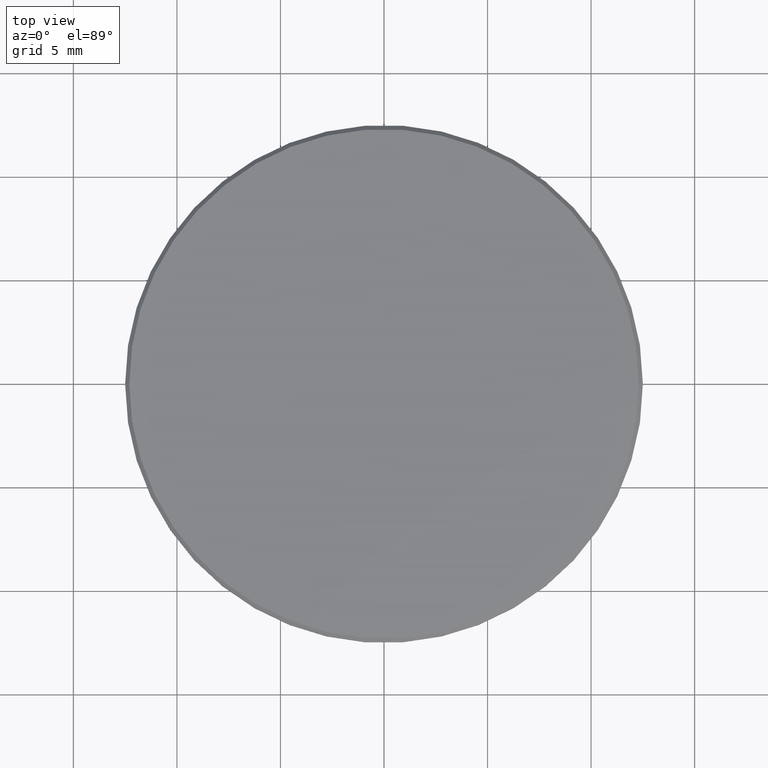
[diagram: clean part render]
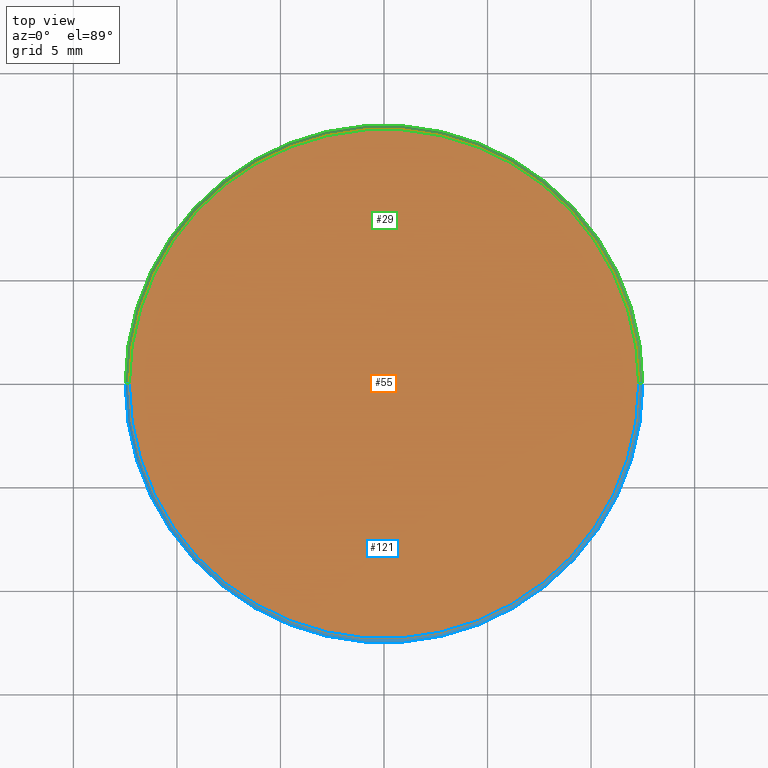
[diagram: same view with three faces highlighted in distinct colors, each labeled with its STEP entity id]
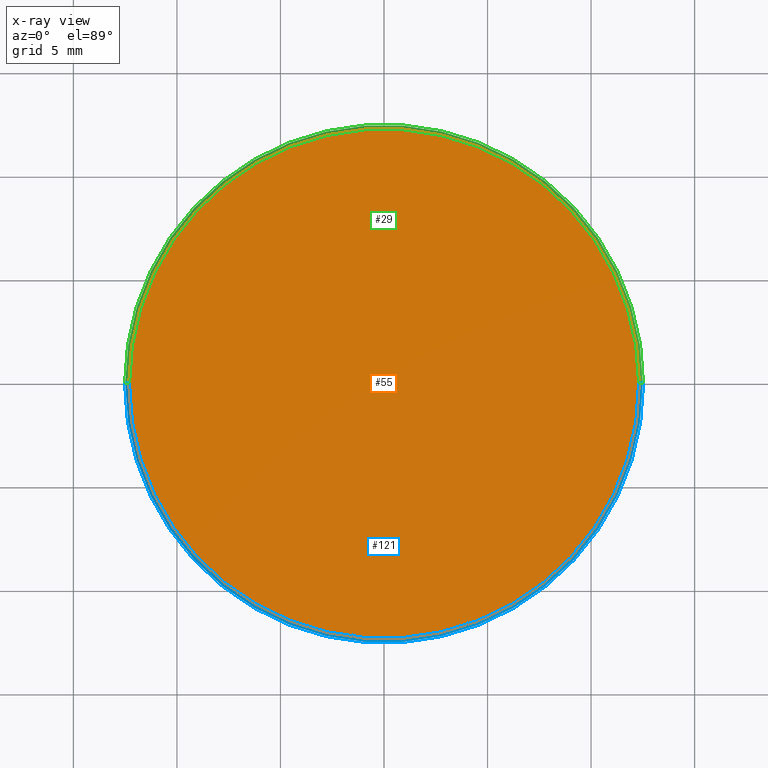
[diagram: x-ray of the same camera — body ghosted, the three highlighted faces saturated]
A machine part, top view with three faces highlighted in distinct colors.
The next image is the same camera in x-ray (body ghosted, the three faces saturated) — at least one of them is partly hidden behind the body in this view.
Their STEP definitions:

[orange] entity #55 — the highlighted planar face has unit normal (0, 0, 1).
#15 = FACE_OUTER_BOUND ( 'NONE', #98, .T. ) ;
#17 = DIRECTION ( 'NONE',  ( 0.000000000000000000, 0.000000000000000000, 1.000000000000000000 ) ) ;
#30 = CARTESIAN_POINT ( 'NONE',  ( -12.29999999999999893, 0.000000000000000000, 1.000000000000000000 ) ) ;
#31 = EDGE_CURVE ( 'NONE', #173, #154, #169, .T. ) ;
#42 = DIRECTION ( 'NONE',  ( 0.000000000000000000, 0.000000000000000000, 1.000000000000000000 ) ) ;
#55 = ADVANCED_FACE ( 'NONE', ( #15 ), #177, .T. ) ;
#57 = AXIS2_PLACEMENT_3D ( 'NONE', #211, #42, #83 ) ;
#67 = DIRECTION ( 'NONE',  ( 1.000000000000000000, 0.000000000000000000, 0.000000000000000000 ) ) ;
#70 = CARTESIAN_POINT ( 'NONE',  ( 0.000000000000000000, 0.000000000000000000, 1.000000000000000000 ) ) ;
#71 = CIRCLE ( 'NONE', #196, 12.29999999999999893 ) ;
#83 = DIRECTION ( 'NONE',  ( 1.000000000000000000, 0.000000000000000000, 0.000000000000000000 ) ) ;
#88 = DIRECTION ( 'NONE',  ( 0.000000000000000000, 0.000000000000000000, 1.000000000000000000 ) ) ;
#95 = ORIENTED_EDGE ( 'NONE', *, *, #31, .T. ) ;
#98 = EDGE_LOOP ( 'NONE', ( #95, #185 ) ) ;
#119 = EDGE_CURVE ( 'NONE', #154, #173, #71, .T. ) ;
#125 = CARTESIAN_POINT ( 'NONE',  ( 12.29999999999999893, 1.518562030942717967E-15, 1.000000000000000000 ) ) ;
#154 = VERTEX_POINT ( 'NONE', #125 ) ;
#169 = CIRCLE ( 'NONE', #57, 12.29999999999999893 ) ;
#173 = VERTEX_POINT ( 'NONE', #30 ) ;
#177 = PLANE ( 'NONE',  #180 ) ;
#178 = DIRECTION ( 'NONE',  ( 1.000000000000000000, 0.000000000000000000, -0.000000000000000000 ) ) ;
#180 = AXIS2_PLACEMENT_3D ( 'NONE', #181, #17, #178 ) ;
#181 = CARTESIAN_POINT ( 'NONE',  ( 0.000000000000000000, 0.000000000000000000, 1.000000000000000000 ) ) ;
#185 = ORIENTED_EDGE ( 'NONE', *, *, #119, .T. ) ;
#196 = AXIS2_PLACEMENT_3D ( 'NONE', #70, #88, #67 ) ;
#211 = CARTESIAN_POINT ( 'NONE',  ( 0.000000000000000000, 0.000000000000000000, 1.000000000000000000 ) ) ;

[blue] entity #121 — the highlighted conical surface has half-angle 45 deg.
#7 = EDGE_CURVE ( 'NONE', #11, #100, #212, .T. ) ;
#9 = CARTESIAN_POINT ( 'NONE',  ( 0.000000000000000000, 0.000000000000000000, 0.8000000000000029310 ) ) ;
#11 = VERTEX_POINT ( 'NONE', #81 ) ;
#13 = LINE ( 'NONE', #87, #139 ) ;
#30 = CARTESIAN_POINT ( 'NONE',  ( -12.29999999999999893, 0.000000000000000000, 1.000000000000000000 ) ) ;
#31 = EDGE_CURVE ( 'NONE', #173, #154, #169, .T. ) ;
#34 = CARTESIAN_POINT ( 'NONE',  ( 12.29999999999999893, 1.506315562951244216E-15, 1.000000000000000000 ) ) ;
#40 = EDGE_LOOP ( 'NONE', ( #76, #99, #209, #188 ) ) ;
#42 = DIRECTION ( 'NONE',  ( 0.000000000000000000, 0.000000000000000000, 1.000000000000000000 ) ) ;
#48 = CARTESIAN_POINT ( 'NONE',  ( 0.000000000000000000, 0.000000000000000000, 1.000000000000000000 ) ) ;
#51 = DIRECTION ( 'NONE',  ( 0.7071067811865566766, 8.659560562355045024E-17, -0.7071067811865383579 ) ) ;
#52 = CONICAL_SURFACE ( 'NONE', #63, 12.29999999999999893, 0.7853981633974612686 ) ;
#57 = AXIS2_PLACEMENT_3D ( 'NONE', #211, #42, #83 ) ;
#63 = AXIS2_PLACEMENT_3D ( 'NONE', #48, #143, #215 ) ;
#66 = LINE ( 'NONE', #34, #193 ) ;
#76 = ORIENTED_EDGE ( 'NONE', *, *, #79, .F. ) ;
#78 = DIRECTION ( 'NONE',  ( 1.000000000000000000, 0.000000000000000000, 0.000000000000000000 ) ) ;
#79 = EDGE_CURVE ( 'NONE', #154, #11, #66, .T. ) ;
#81 = CARTESIAN_POINT ( 'NONE',  ( 12.50000000000000000, 1.530808498934191521E-15, 0.8000000000000029310 ) ) ;
#83 = DIRECTION ( 'NONE',  ( 1.000000000000000000, 0.000000000000000000, 0.000000000000000000 ) ) ;
#87 = CARTESIAN_POINT ( 'NONE',  ( -12.29999999999999893, 0.000000000000000000, 1.000000000000000000 ) ) ;
#92 = EDGE_CURVE ( 'NONE', #173, #100, #13, .T. ) ;
#99 = ORIENTED_EDGE ( 'NONE', *, *, #31, .F. ) ;
#100 = VERTEX_POINT ( 'NONE', #234 ) ;
#108 = AXIS2_PLACEMENT_3D ( 'NONE', #9, #156, #78 ) ;
#121 = ADVANCED_FACE ( 'NONE', ( #217 ), #52, .T. ) ;
#125 = CARTESIAN_POINT ( 'NONE',  ( 12.29999999999999893, 1.518562030942717967E-15, 1.000000000000000000 ) ) ;
#139 = VECTOR ( 'NONE', #158, 1000.000000000000000 ) ;
#143 = DIRECTION ( 'NONE',  ( 0.000000000000000000, 0.000000000000000000, -1.000000000000000000 ) ) ;
#154 = VERTEX_POINT ( 'NONE', #125 ) ;
#156 = DIRECTION ( 'NONE',  ( 0.000000000000000000, 0.000000000000000000, -1.000000000000000000 ) ) ;
#158 = DIRECTION ( 'NONE',  ( -0.7071067811865566766, 0.000000000000000000, -0.7071067811865383579 ) ) ;
#169 = CIRCLE ( 'NONE', #57, 12.29999999999999893 ) ;
#173 = VERTEX_POINT ( 'NONE', #30 ) ;
#188 = ORIENTED_EDGE ( 'NONE', *, *, #7, .F. ) ;
#193 = VECTOR ( 'NONE', #51, 1000.000000000000000 ) ;
#209 = ORIENTED_EDGE ( 'NONE', *, *, #92, .T. ) ;
#211 = CARTESIAN_POINT ( 'NONE',  ( 0.000000000000000000, 0.000000000000000000, 1.000000000000000000 ) ) ;
#212 = CIRCLE ( 'NONE', #108, 12.50000000000000000 ) ;
#215 = DIRECTION ( 'NONE',  ( -1.000000000000000000, 0.000000000000000000, 0.000000000000000000 ) ) ;
#217 = FACE_OUTER_BOUND ( 'NONE', #40, .T. ) ;
#234 = CARTESIAN_POINT ( 'NONE',  ( -12.50000000000000000, 0.000000000000000000, 0.8000000000000029310 ) ) ;

[green] entity #29 — the highlighted conical surface has half-angle 45 deg.
#11 = VERTEX_POINT ( 'NONE', #81 ) ;
#13 = LINE ( 'NONE', #87, #139 ) ;
#19 = DIRECTION ( 'NONE',  ( 0.000000000000000000, 0.000000000000000000, -1.000000000000000000 ) ) ;
#22 = CIRCLE ( 'NONE', #104, 12.50000000000000000 ) ;
#29 = ADVANCED_FACE ( 'NONE', ( #77 ), #32, .T. ) ;
#30 = CARTESIAN_POINT ( 'NONE',  ( -12.29999999999999893, 0.000000000000000000, 1.000000000000000000 ) ) ;
#32 = CONICAL_SURFACE ( 'NONE', #86, 12.29999999999999893, 0.7853981633974612686 ) ;
#34 = CARTESIAN_POINT ( 'NONE',  ( 12.29999999999999893, 1.506315562951244216E-15, 1.000000000000000000 ) ) ;
#51 = DIRECTION ( 'NONE',  ( 0.7071067811865566766, 8.659560562355045024E-17, -0.7071067811865383579 ) ) ;
#66 = LINE ( 'NONE', #34, #193 ) ;
#67 = DIRECTION ( 'NONE',  ( 1.000000000000000000, 0.000000000000000000, 0.000000000000000000 ) ) ;
#70 = CARTESIAN_POINT ( 'NONE',  ( 0.000000000000000000, 0.000000000000000000, 1.000000000000000000 ) ) ;
#71 = CIRCLE ( 'NONE', #196, 12.29999999999999893 ) ;
#77 = FACE_OUTER_BOUND ( 'NONE', #117, .T. ) ;
#79 = EDGE_CURVE ( 'NONE', #154, #11, #66, .T. ) ;
#81 = CARTESIAN_POINT ( 'NONE',  ( 12.50000000000000000, 1.530808498934191521E-15, 0.8000000000000029310 ) ) ;
#86 = AXIS2_PLACEMENT_3D ( 'NONE', #152, #228, #138 ) ;
#87 = CARTESIAN_POINT ( 'NONE',  ( -12.29999999999999893, 0.000000000000000000, 1.000000000000000000 ) ) ;
#88 = DIRECTION ( 'NONE',  ( 0.000000000000000000, 0.000000000000000000, 1.000000000000000000 ) ) ;
#92 = EDGE_CURVE ( 'NONE', #173, #100, #13, .T. ) ;
#100 = VERTEX_POINT ( 'NONE', #234 ) ;
#104 = AXIS2_PLACEMENT_3D ( 'NONE', #237, #19, #203 ) ;
#117 = EDGE_LOOP ( 'NONE', ( #230, #150, #195, #206 ) ) ;
#119 = EDGE_CURVE ( 'NONE', #154, #173, #71, .T. ) ;
#125 = CARTESIAN_POINT ( 'NONE',  ( 12.29999999999999893, 1.518562030942717967E-15, 1.000000000000000000 ) ) ;
#138 = DIRECTION ( 'NONE',  ( -1.000000000000000000, 0.000000000000000000, 0.000000000000000000 ) ) ;
#139 = VECTOR ( 'NONE', #158, 1000.000000000000000 ) ;
#150 = ORIENTED_EDGE ( 'NONE', *, *, #79, .T. ) ;
#152 = CARTESIAN_POINT ( 'NONE',  ( 0.000000000000000000, 0.000000000000000000, 1.000000000000000000 ) ) ;
#154 = VERTEX_POINT ( 'NONE', #125 ) ;
#158 = DIRECTION ( 'NONE',  ( -0.7071067811865566766, 0.000000000000000000, -0.7071067811865383579 ) ) ;
#173 = VERTEX_POINT ( 'NONE', #30 ) ;
#175 = EDGE_CURVE ( 'NONE', #100, #11, #22, .T. ) ;
#193 = VECTOR ( 'NONE', #51, 1000.000000000000000 ) ;
#195 = ORIENTED_EDGE ( 'NONE', *, *, #175, .F. ) ;
#196 = AXIS2_PLACEMENT_3D ( 'NONE', #70, #88, #67 ) ;
#203 = DIRECTION ( 'NONE',  ( 1.000000000000000000, 0.000000000000000000, 0.000000000000000000 ) ) ;
#206 = ORIENTED_EDGE ( 'NONE', *, *, #92, .F. ) ;
#228 = DIRECTION ( 'NONE',  ( 0.000000000000000000, 0.000000000000000000, -1.000000000000000000 ) ) ;
#230 = ORIENTED_EDGE ( 'NONE', *, *, #119, .F. ) ;
#234 = CARTESIAN_POINT ( 'NONE',  ( -12.50000000000000000, 0.000000000000000000, 0.8000000000000029310 ) ) ;
#237 = CARTESIAN_POINT ( 'NONE',  ( 0.000000000000000000, 0.000000000000000000, 0.8000000000000029310 ) ) ;